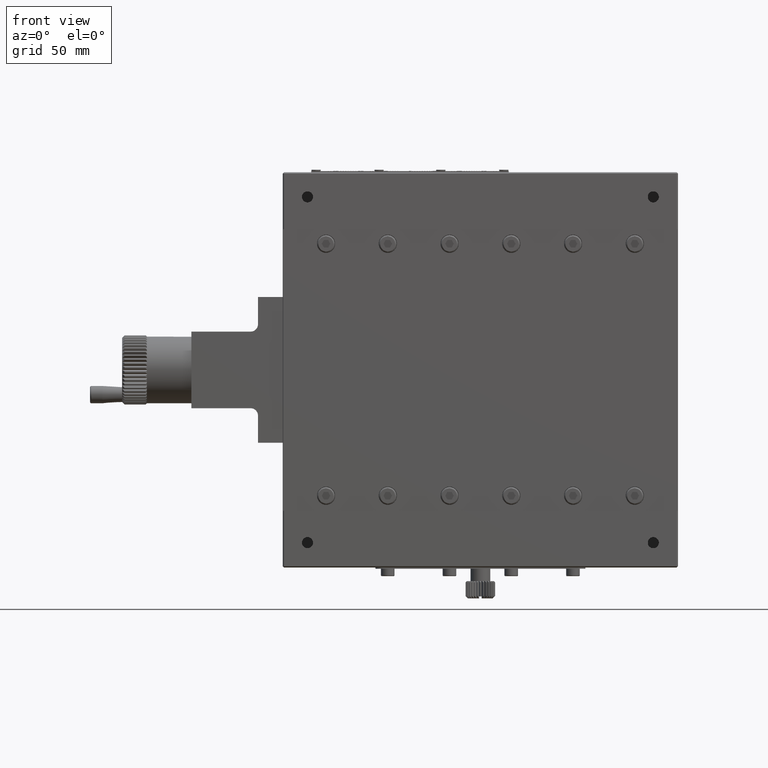
[diagram: clean part render]
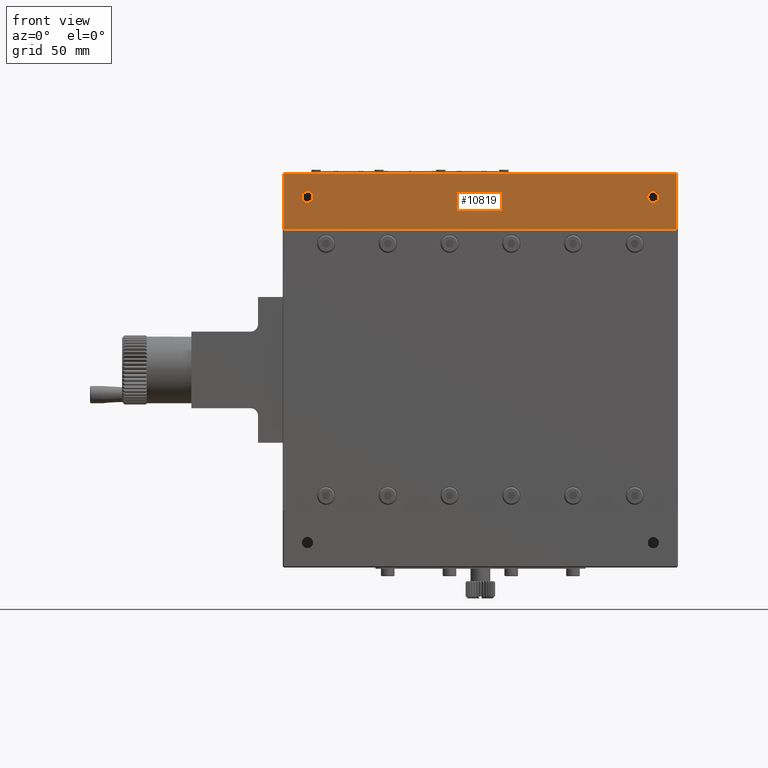
[diagram: same view with one face highlighted and labeled with its STEP entity id]
A machine part, front view. The second image highlights one B-rep face of the part: STEP entity #10819.
In plain terms, the highlighted planar face has unit normal (0, -1, 0).
Its self-contained STEP definition (entity closure, byte-faithful):
#734 = CARTESIAN_POINT ( 'NONE',  ( -0.5000000000000004441, 8.131516293641283255E-17, 57.00000000000000000 ) ) ;
#2067 = VECTOR ( 'NONE', #43691, 1000.000000000000000 ) ;
#5764 = LINE ( 'NONE', #43349, #2067 ) ;
#6069 = LINE ( 'NONE', #62589, #23113 ) ;
#6264 = DIRECTION ( 'NONE',  ( 0.000000000000000000, -0.000000000000000000, -1.000000000000000000 ) ) ;
#8644 = ORIENTED_EDGE ( 'NONE', *, *, #11649, .T. ) ;
#10819 = ADVANCED_FACE ( 'NONE', ( #66461, #16138, #39094 ), #27783, .T. ) ;
#10996 = CARTESIAN_POINT ( 'NONE',  ( -10.00000000000000000, 0.000000000000000000, 72.25000000000001421 ) ) ;
#11649 = EDGE_CURVE ( 'NONE', #43839, #43839, #39538, .T. ) ;
#14440 = ORIENTED_EDGE ( 'NONE', *, *, #17050, .T. ) ;
#15755 = DIRECTION ( 'NONE',  ( 0.000000000000000000, 1.000000000000000000, 0.000000000000000000 ) ) ;
#16138 = FACE_BOUND ( 'NONE', #20749, .T. ) ;
#17050 = EDGE_CURVE ( 'NONE', #63498, #63498, #21899, .T. ) ;
#19914 = ORIENTED_EDGE ( 'NONE', *, *, #56045, .F. ) ;
#20749 = EDGE_LOOP ( 'NONE', ( #8644 ) ) ;
#21223 = CARTESIAN_POINT ( 'NONE',  ( -150.0000000000000000, 0.000000000000000000, 70.00000000000000000 ) ) ;
#21899 = CIRCLE ( 'NONE', #32416, 2.250000000000001776 ) ;
#22126 = ORIENTED_EDGE ( 'NONE', *, *, #45332, .T. ) ;
#23113 = VECTOR ( 'NONE', #40724, 1000.000000000000000 ) ;
#23619 = VECTOR ( 'NONE', #69428, 1000.000000000000000 ) ;
#23781 = CARTESIAN_POINT ( 'NONE',  ( -159.5000000000000000, -2.236166980751352895E-16, 79.50000000000000000 ) ) ;
#23814 = EDGE_CURVE ( 'NONE', #28266, #63720, #5764, .T. ) ;
#23863 = DIRECTION ( 'NONE',  ( 0.000000000000000000, 0.000000000000000000, 1.000000000000000000 ) ) ;
#24921 = CARTESIAN_POINT ( 'NONE',  ( -160.0000000000000000, 0.000000000000000000, 79.50000000000000000 ) ) ;
#25276 = LINE ( 'NONE', #24921, #23619 ) ;
#27121 = ORIENTED_EDGE ( 'NONE', *, *, #23814, .T. ) ;
#27783 = PLANE ( 'NONE',  #65074 ) ;
#28266 = VERTEX_POINT ( 'NONE', #734 ) ;
#29127 = CARTESIAN_POINT ( 'NONE',  ( -159.5000000000000000, 1.355252715606880543E-17, 57.00000000000000000 ) ) ;
#31873 = EDGE_LOOP ( 'NONE', ( #22126, #19914, #70605, #27121 ) ) ;
#32416 = AXIS2_PLACEMENT_3D ( 'NONE', #21223, #15755, #42419 ) ;
#34076 = CARTESIAN_POINT ( 'NONE',  ( -10.00000000000000000, 0.000000000000000000, 70.00000000000000000 ) ) ;
#36083 = AXIS2_PLACEMENT_3D ( 'NONE', #34076, #40286, #23863 ) ;
#39094 = FACE_BOUND ( 'NONE', #67484, .T. ) ;
#39538 = CIRCLE ( 'NONE', #36083, 2.250000000000001776 ) ;
#39653 = CARTESIAN_POINT ( 'NONE',  ( -0.4999999999999588107, -1.016439536705160160E-16, 79.50000000000000000 ) ) ;
#39830 = CARTESIAN_POINT ( 'NONE',  ( -160.0000000000000000, 0.000000000000000000, 80.00000000000000000 ) ) ;
#40152 = CARTESIAN_POINT ( 'NONE',  ( -150.0000000000000000, 0.000000000000000000, 72.25000000000001421 ) ) ;
#40286 = DIRECTION ( 'NONE',  ( 0.000000000000000000, 1.000000000000000000, 0.000000000000000000 ) ) ;
#40724 = DIRECTION ( 'NONE',  ( 1.000000000000000000, 0.000000000000000000, -0.000000000000000000 ) ) ;
#42419 = DIRECTION ( 'NONE',  ( 0.000000000000000000, 0.000000000000000000, 1.000000000000000000 ) ) ;
#42788 = CARTESIAN_POINT ( 'NONE',  ( -159.5000000000000000, 0.000000000000000000, 80.00000000000000000 ) ) ;
#43349 = CARTESIAN_POINT ( 'NONE',  ( -0.5000000000000003331, 3.252606517456513302E-16, 0.000000000000000000 ) ) ;
#43691 = DIRECTION ( 'NONE',  ( 0.000000000000000000, 0.000000000000000000, 1.000000000000000000 ) ) ;
#43839 = VERTEX_POINT ( 'NONE', #10996 ) ;
#45332 = EDGE_CURVE ( 'NONE', #63720, #66712, #25276, .T. ) ;
#47354 = EDGE_CURVE ( 'NONE', #52822, #28266, #6069, .T. ) ;
#52822 = VERTEX_POINT ( 'NONE', #29127 ) ;
#56045 = EDGE_CURVE ( 'NONE', #52822, #66712, #58154, .T. ) ;
#58154 = LINE ( 'NONE', #42788, #67169 ) ;
#62589 = CARTESIAN_POINT ( 'NONE',  ( -160.0000000000000000, 0.000000000000000000, 57.00000000000000000 ) ) ;
#63498 = VERTEX_POINT ( 'NONE', #40152 ) ;
#63720 = VERTEX_POINT ( 'NONE', #39653 ) ;
#65074 = AXIS2_PLACEMENT_3D ( 'NONE', #39830, #71567, #6264 ) ;
#66461 = FACE_OUTER_BOUND ( 'NONE', #31873, .T. ) ;
#66712 = VERTEX_POINT ( 'NONE', #23781 ) ;
#67169 = VECTOR ( 'NONE', #69805, 1000.000000000000000 ) ;
#67484 = EDGE_LOOP ( 'NONE', ( #14440 ) ) ;
#69428 = DIRECTION ( 'NONE',  ( -1.000000000000000000, -0.000000000000000000, -0.000000000000000000 ) ) ;
#69805 = DIRECTION ( 'NONE',  ( 0.000000000000000000, 0.000000000000000000, 1.000000000000000000 ) ) ;
#70605 = ORIENTED_EDGE ( 'NONE', *, *, #47354, .T. ) ;
#71567 = DIRECTION ( 'NONE',  ( 0.000000000000000000, -1.000000000000000000, 0.000000000000000000 ) ) ;